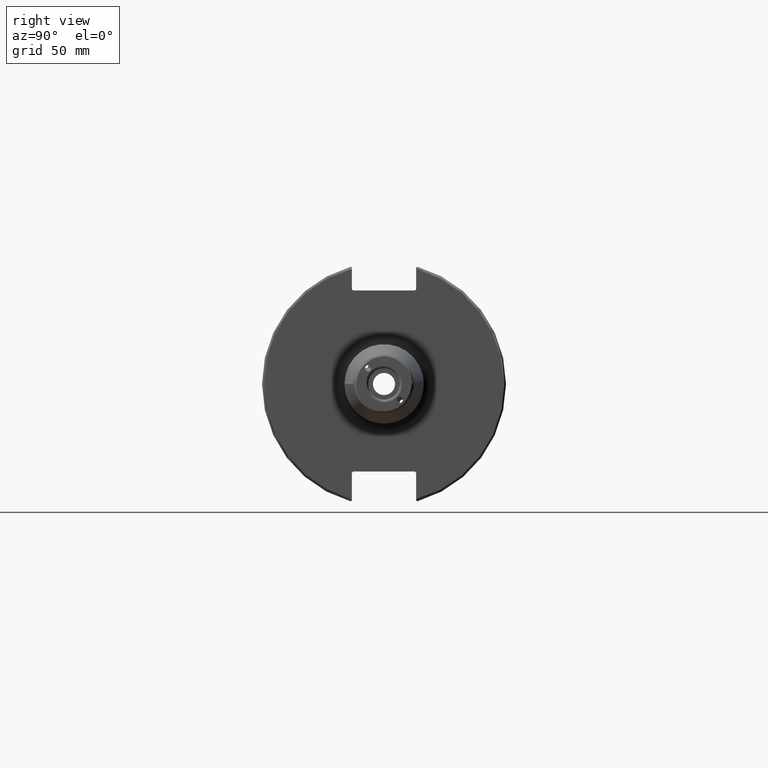
[diagram: clean part render]
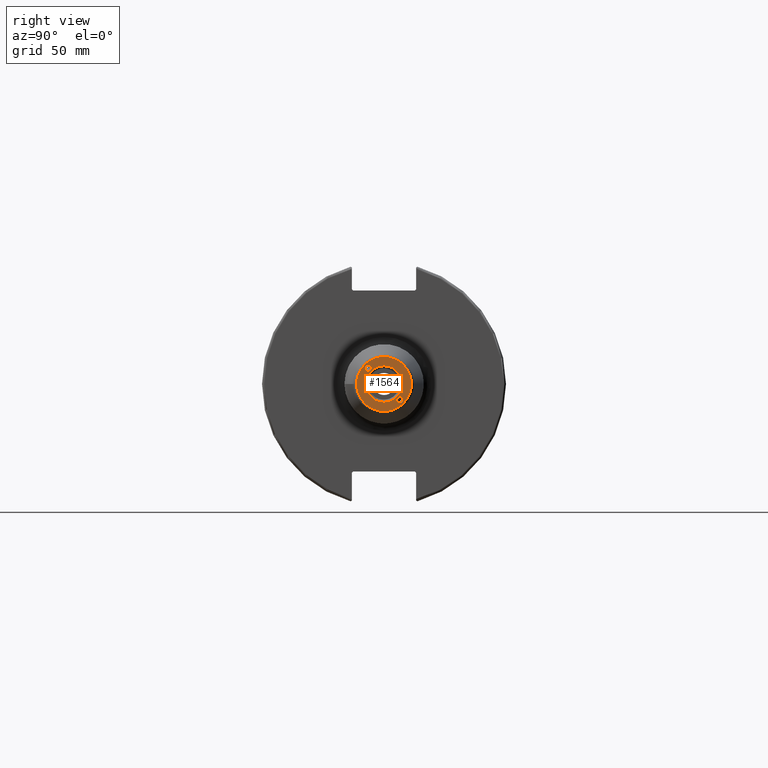
[diagram: same view with one face highlighted and labeled with its STEP entity id]
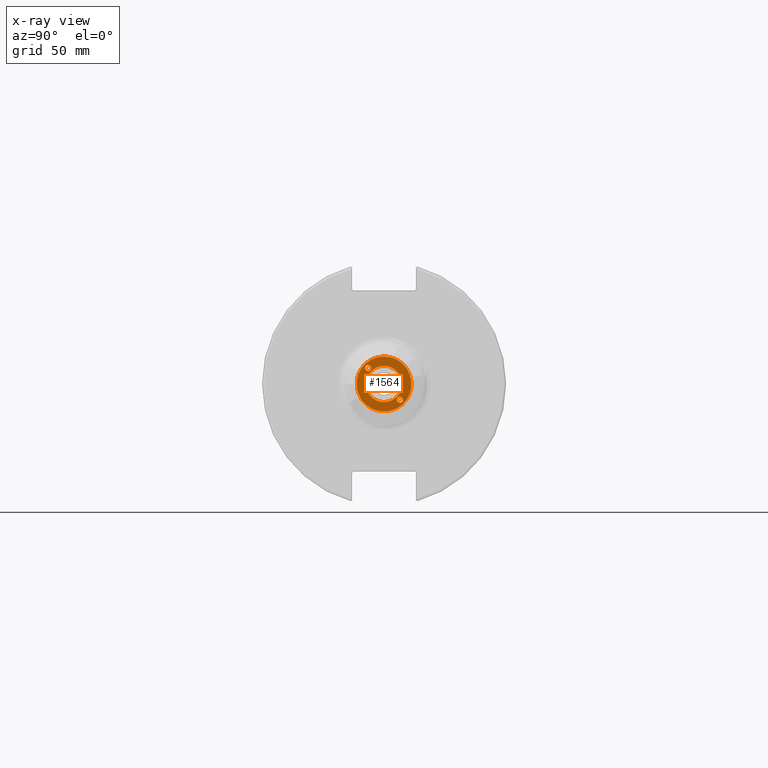
[diagram: x-ray of the same camera — body ghosted, the highlighted face saturated]
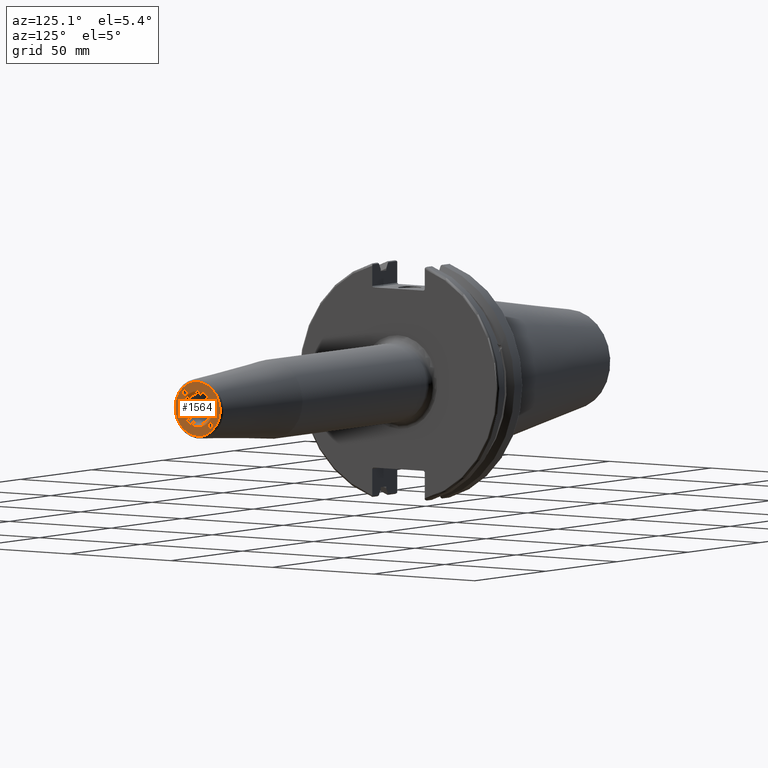
[diagram: same view with one face highlighted and labeled with its STEP entity id]
A machine part, right view. The second image highlights one B-rep face of the part: STEP entity #1564.
The next image is the same camera in x-ray: the body ghosted, the highlighted face saturated — about 0% of this face is hidden behind the body in this view.
A second angle (auxiliary view) of the same face is appended — the face is thin or edge-on in the first view.
In plain terms, the highlighted planar face has unit normal (1, 0, 0).
Its self-contained STEP definition (entity closure, byte-faithful):
#73=FACE_BOUND('',#271,.T.);
#74=FACE_BOUND('',#272,.T.);
#75=FACE_BOUND('',#273,.T.);
#93=PLANE('',#1687);
#140=ELLIPSE('',#1677,1.25076193037353,1.25);
#141=ELLIPSE('',#1681,1.25076193037353,1.25);
#178=FACE_OUTER_BOUND('',#270,.T.);
#270=EDGE_LOOP('',(#1078));
#271=EDGE_LOOP('',(#1079));
#272=EDGE_LOOP('',(#1080));
#273=EDGE_LOOP('',(#1081));
#578=CIRCLE('',#1686,7.35000000000001);
#579=CIRCLE('',#1688,11.0756095083418);
#657=VERTEX_POINT('',#2315);
#660=VERTEX_POINT('',#2324);
#663=VERTEX_POINT('',#2332);
#664=VERTEX_POINT('',#2336);
#819=EDGE_CURVE('',#657,#657,#140,.T.);
#823=EDGE_CURVE('',#660,#660,#141,.T.);
#828=EDGE_CURVE('',#663,#663,#578,.T.);
#829=EDGE_CURVE('',#664,#664,#579,.T.);
#1078=ORIENTED_EDGE('',*,*,#829,.F.);
#1079=ORIENTED_EDGE('',*,*,#819,.T.);
#1080=ORIENTED_EDGE('',*,*,#823,.T.);
#1081=ORIENTED_EDGE('',*,*,#828,.F.);
#1564=ADVANCED_FACE('',(#178,#73,#74,#75),#93,.T.);
#1677=AXIS2_PLACEMENT_3D('',#2316,#1861,#1862);
#1681=AXIS2_PLACEMENT_3D('',#2325,#1871,#1872);
#1686=AXIS2_PLACEMENT_3D('',#2334,#1882,#1883);
#1687=AXIS2_PLACEMENT_3D('',#2335,#1884,#1885);
#1688=AXIS2_PLACEMENT_3D('',#2337,#1886,#1887);
#1861=DIRECTION('center_axis',(-1.,0.,0.));
#1862=DIRECTION('ref_axis',(0.,0.707106781186413,-0.707106781186682));
#1871=DIRECTION('center_axis',(-1.,0.,0.));
#1872=DIRECTION('ref_axis',(0.,-0.707106781186413,0.707106781186682));
#1882=DIRECTION('center_axis',(1.,0.,0.));
#1883=DIRECTION('ref_axis',(0.,-1.,1.83697019872103E-16));
#1884=DIRECTION('center_axis',(1.,0.,0.));
#1885=DIRECTION('ref_axis',(0.,0.,-1.));
#1886=DIRECTION('center_axis',(-1.,0.,0.));
#1887=DIRECTION('ref_axis',(0.,-1.,1.83697019872103E-16));
#2315=CARTESIAN_POINT('',(160.,-7.61434205390179,6.36472296101709));
#2316=CARTESIAN_POINT('Origin',(160.,-6.36396103067893,6.36396103067893));
#2324=CARTESIAN_POINT('',(160.,7.61434205390179,-6.36472296101709));
#2325=CARTESIAN_POINT('Origin',(160.,6.36396103067893,-6.36396103067893));
#2332=CARTESIAN_POINT('',(160.,-9.00115397373306E-16,7.35000000000001));
#2334=CARTESIAN_POINT('Origin',(160.,0.,0.));
#2335=CARTESIAN_POINT('Origin',(160.,6.35000000000001,0.));
#2336=CARTESIAN_POINT('',(160.,-1.35637097329968E-15,11.0756095083418));
#2337=CARTESIAN_POINT('Origin',(160.,0.,0.));